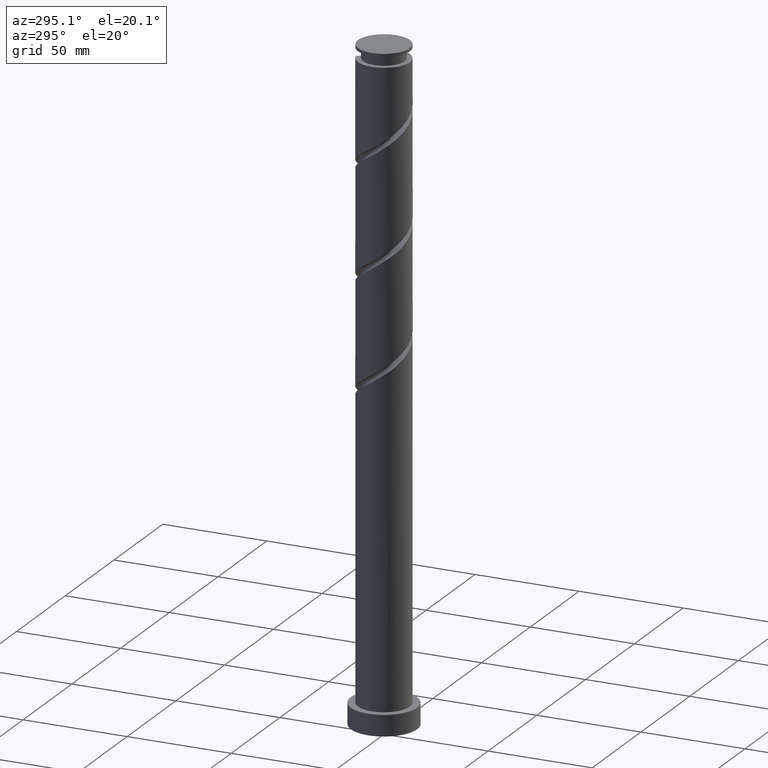
[diagram: clean part render]
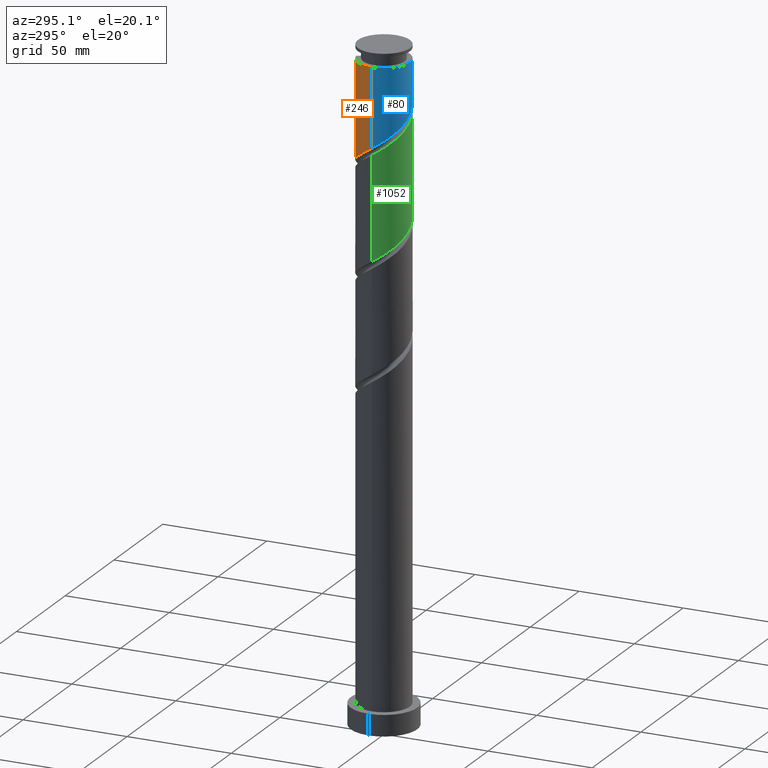
[diagram: same view with three faces highlighted in distinct colors, each labeled with its STEP entity id]
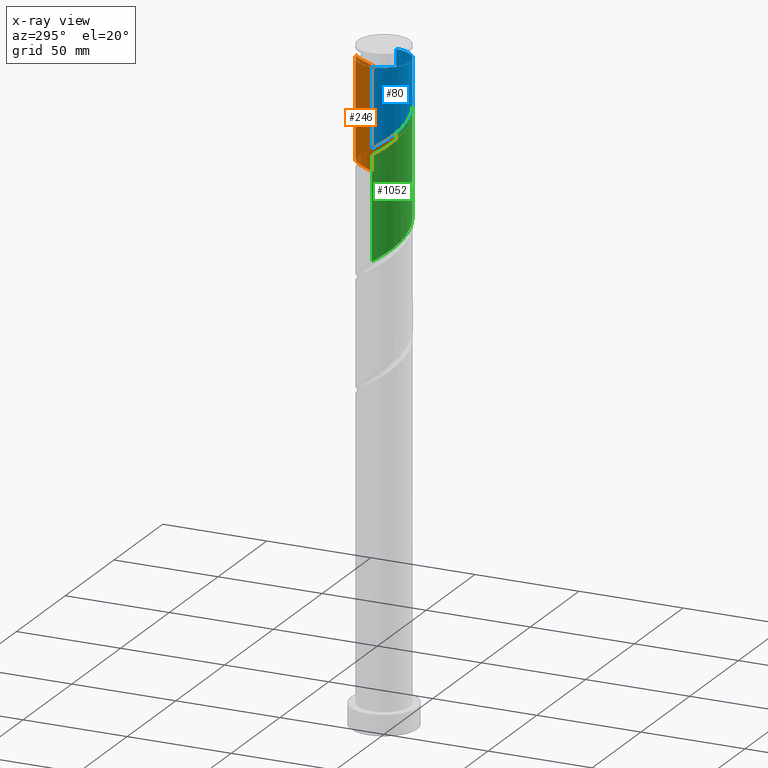
[diagram: x-ray of the same camera — body ghosted, the three highlighted faces saturated]
A machine part, auxiliary view with three faces highlighted in distinct colors.
The next image is the same camera in x-ray (body ghosted, the three faces saturated) — at least one of them is partly hidden behind the body in this view.
Their STEP definitions:

[orange] entity #246 — the highlighted cylindrical surface (edge-blend (fillet) strip) has radius 12.5 mm, axis along (-0, -0, -1).
#24 = CARTESIAN_POINT ( 'NONE',  ( 0.000000000000000000, 0.000000000000000000, 315.0000000000000000 ) ) ;
#49 = CARTESIAN_POINT ( 'NONE',  ( -12.50000000000000000, 1.880647463712331659E-15, 270.8338464934539616 ) ) ;
#70 = CARTESIAN_POINT ( 'NONE',  ( 12.46249111809730081, 1.708782837392382570, 245.7218294155478304 ) ) ;
#78 = CARTESIAN_POINT ( 'NONE',  ( 12.11614080577168018, 3.073944042222378048, 246.6593294155478304 ) ) ;
#87 = CARTESIAN_POINT ( 'NONE',  ( 5.150984002728609568, 11.38935308977792182, 254.1593294155478873 ) ) ;
#98 = CARTESIAN_POINT ( 'NONE',  ( 1.107225078990194511, 12.53027039925619590, 256.9718294155478020 ) ) ;
#107 = CARTESIAN_POINT ( 'NONE',  ( -12.50000000000000000, 1.880647463712331659E-15, 270.8338464934539616 ) ) ;
#114 = CARTESIAN_POINT ( 'NONE',  ( 12.50000000000001421, 1.256297269074016842, 294.5730834166054137 ) ) ;
#152 = VECTOR ( 'NONE', #1671, 1000.000000000000000 ) ;
#223 = CARTESIAN_POINT ( 'NONE',  ( 3.867712106542916750, 11.96972960074379877, 255.0968294155478020 ) ) ;
#246 = ADVANCED_FACE ( 'NONE', ( #286 ), #1811, .T. ) ;
#262 = CARTESIAN_POINT ( 'NONE',  ( 8.026524360199539743, 9.582531330244838941, 301.0343294155479157 ) ) ;
#280 = CARTESIAN_POINT ( 'NONE',  ( 4.439105247052387071, 11.76979049344606665, 303.8468294155477452 ) ) ;
#286 = FACE_OUTER_BOUND ( 'NONE', #686, .T. ) ;
#301 = VERTEX_POINT ( 'NONE', #1209 ) ;
#313 = VERTEX_POINT ( 'NONE', #1655 ) ;
#358 = CARTESIAN_POINT ( 'NONE',  ( 12.49999999999999822, 0.1504112145798753852, 244.6842091816789946 ) ) ;
#369 = AXIS2_PLACEMENT_3D ( 'NONE', #24, #616, #1090 ) ;
#377 = CARTESIAN_POINT ( 'NONE',  ( -9.106216336863127481, 8.678159233401288475, 264.4718294155478020 ) ) ;
#399 = ORIENTED_EDGE ( 'NONE', *, *, #1509, .F. ) ;
#413 = CARTESIAN_POINT ( 'NONE',  ( -1.107225078990243583, 12.53027039925621544, 307.5968294155478588 ) ) ;
#417 = VERTEX_POINT ( 'NONE', #677 ) ;
#422 = CARTESIAN_POINT ( 'NONE',  ( 11.96972960074382009, 3.867712106542916306, 296.3468294155477452 ) ) ;
#443 = CARTESIAN_POINT ( 'NONE',  ( 9.106216336863141692, 8.678159233401297357, 300.0968294155478020 ) ) ;
#464 = ORIENTED_EDGE ( 'NONE', *, *, #1164, .F. ) ;
#465 = AXIS2_PLACEMENT_3D ( 'NONE', #613, #605, #1197 ) ;
#470 =( BOUNDED_CURVE ( )  B_SPLINE_CURVE ( 2, ( #853, #114, #704, #422, #1299, #732, #1189, #443, #262, #1741, #1890, #280, #1020, #1910, #577, #413, #862 ),
 .UNSPECIFIED., .F., .T. ) 
 B_SPLINE_CURVE_WITH_KNOTS ( ( 3, 2, 2, 2, 2, 2, 2, 2, 3 ),
 ( 0.6795303401299220836, 0.6875000000000000000, 0.6964285714285715079, 0.7053571428571429047, 0.7142857142857144126, 0.7232142857142859205, 0.7321428571428574283, 0.7410714285714289362, 0.7500000000000003331 ),
 .UNSPECIFIED. ) 
 CURVE ( )  GEOMETRIC_REPRESENTATION_ITEM ( )  RATIONAL_B_SPLINE_CURVE ( ( 0.9079949616361926434, 0.9039886423360559142, 0.9090909090909224943, 0.9033747362665975889, 0.9090909090909224943, 0.9033747362665975889, 0.9090909090909224943, 0.9033747362665975889, 0.9090909090909224943, 0.9033747362665975889, 0.9090909090909224943, 0.9033747362665975889, 0.9090909090909224943, 0.9033747362665975889, 0.9090909090909224943, 0.9033747362665974778, 0.9090909090909226054 ) ) 
 REPRESENTATION_ITEM ( '' )  );
#524 = CARTESIAN_POINT ( 'NONE',  ( 7.556207566157794098, 9.957596457837590620, 252.2843294155478020 ) ) ;
#537 = CARTESIAN_POINT ( 'NONE',  ( -1.708782837392384790, 12.46249111809730081, 258.8468294155477452 ) ) ;
#550 = CARTESIAN_POINT ( 'NONE',  ( 9.582531330244826506, 8.026524360199521979, 250.4093294155478304 ) ) ;
#567 = CARTESIAN_POINT ( 'NONE',  ( 12.50000000000001954, -3.000080477826793462E-15, 293.7348123376418130 ) ) ;
#577 = CARTESIAN_POINT ( 'NONE',  ( 0.3007788792011008017, 12.49638075867676967, 306.6593294155478020 ) ) ;
#588 = LINE ( 'NONE', #1181, #1615 ) ;
#605 = DIRECTION ( 'NONE',  ( -0.000000000000000000, -0.000000000000000000, -1.000000000000000000 ) ) ;
#613 = CARTESIAN_POINT ( 'NONE',  ( 0.000000000000000000, 0.000000000000000000, 308.5343294155478020 ) ) ;
#616 = DIRECTION ( 'NONE',  ( -0.000000000000000000, -0.000000000000000000, -1.000000000000000000 ) ) ;
#675 = CARTESIAN_POINT ( 'NONE',  ( -6.946832383535917366, 10.48690342708835921, 262.5968294155478020 ) ) ;
#677 = CARTESIAN_POINT ( 'NONE',  ( 12.49999999999999822, -5.373278467749518575E-15, 244.5838464934539047 ) ) ;
#678 = EDGE_CURVE ( 'NONE', #1182, #417, #1207, .T. ) ;
#686 = EDGE_LOOP ( 'NONE', ( #464, #1178, #399, #1597, #1061 ) ) ;
#704 = CARTESIAN_POINT ( 'NONE',  ( 12.25000000000001954, 2.487468592766555187, 295.4093294155479157 ) ) ;
#705 = CARTESIAN_POINT ( 'NONE',  ( -12.25000000000000000, 2.487468592766555631, 269.1593294155478020 ) ) ;
#732 = CARTESIAN_POINT ( 'NONE',  ( 10.80897657881207152, 6.434255898914305938, 298.2218294155478588 ) ) ;
#814 = CARTESIAN_POINT ( 'NONE',  ( 8.678159233401288475, 9.106216336863127481, 251.3468294155478020 ) ) ;
#843 = CARTESIAN_POINT ( 'NONE',  ( -11.96972960074379877, 3.867712106542914530, 268.2218294155478588 ) ) ;
#853 = CARTESIAN_POINT ( 'NONE',  ( 12.50000000000001954, -3.000080477826793462E-15, 293.7348123376418698 ) ) ;
#862 = CARTESIAN_POINT ( 'NONE',  ( -2.487468592766553410, 12.25000000000001954, 308.5343294155478020 ) ) ;
#967 = CARTESIAN_POINT ( 'NONE',  ( 2.487468592766557851, 12.25000000000000000, 256.0343294155478020 ) ) ;
#1020 = CARTESIAN_POINT ( 'NONE',  ( 3.073944042222391371, 12.11614080577169617, 304.7843294155479725 ) ) ;
#1061 = ORIENTED_EDGE ( 'NONE', *, *, #1851, .T. ) ;
#1077 = CARTESIAN_POINT ( 'NONE',  ( 12.50000000000000000, 1.530808498934191521E-15, 315.0000000000000000 ) ) ;
#1090 = DIRECTION ( 'NONE',  ( -1.000000000000000000, 0.000000000000000000, 0.000000000000000000 ) ) ;
#1100 = CARTESIAN_POINT ( 'NONE',  ( -12.49999999999999822, 1.256297269074010181, 269.9955754144902471 ) ) ;
#1122 = CARTESIAN_POINT ( 'NONE',  ( 10.48690342708836098, 6.946832383535914701, 249.4718294155478873 ) ) ;
#1142 = CARTESIAN_POINT ( 'NONE',  ( -9.957596457837594173, 7.556207566157791433, 265.4093294155478588 ) ) ;
#1146 =( BOUNDED_CURVE ( )  B_SPLINE_CURVE ( 2, ( #107, #1100, #705, #843, #1585, #1259, #1142, #377, #1300, #675, #1693, #1871, #1404, #537, #1412, #98, #967, #223, #87, #1291, #524, #814, #550, #1122, #1437, #1446, #78, #70, #1882, #358, #1269 ),
 .UNSPECIFIED., .F., .T. ) 
 B_SPLINE_CURVE_WITH_KNOTS ( ( 3, 2, 2, 2, 2, 2, 2, 2, 2, 2, 2, 2, 2, 2, 2, 3 ),
 ( 0.4295303401299219725, 0.4375000000000000000, 0.4464285714285714524, 0.4553571428571428492, 0.4642857142857143016, 0.4732142857142856984, 0.4821428571428571508, 0.4910714285714285476, 0.5000000000000000000, 0.5089285714285713969, 0.5178571428571429047, 0.5267857142857143016, 0.5357142857142856984, 0.5446428571428570953, 0.5535714285714286031, 0.5545303401299220836 ),
 .UNSPECIFIED. ) 
 CURVE ( )  GEOMETRIC_REPRESENTATION_ITEM ( )  RATIONAL_B_SPLINE_CURVE ( ( 0.9079949616361863152, 0.9039886423360495860, 0.9090909090909161661, 0.9033747362665913716, 0.9090909090909161661, 0.9033747362665913716, 0.9090909090909161661, 0.9033747362665913716, 0.9090909090909161661, 0.9033747362665913716, 0.9090909090909161661, 0.9033747362665913716, 0.9090909090909161661, 0.9033747362665913716, 0.9090909090909161661, 0.9033747362665913716, 0.9090909090909161661, 0.9033747362665913716, 0.9090909090909161661, 0.9033747362665913716, 0.9090909090909161661, 0.9033747362665913716, 0.9090909090909161661, 0.9033747362665913716, 0.9090909090909161661, 0.9033747362665913716, 0.9090909090909161661, 0.9033747362665913716, 0.9090909090909161661, 0.9084770030214579517, 0.9079949616361863152 ) ) 
 REPRESENTATION_ITEM ( '' )  );
#1164 = EDGE_CURVE ( 'NONE', #1182, #313, #470, .T. ) ;
#1178 = ORIENTED_EDGE ( 'NONE', *, *, #678, .T. ) ;
#1181 = CARTESIAN_POINT ( 'NONE',  ( -12.50000000000000000, 0.000000000000000000, 315.0000000000000000 ) ) ;
#1182 = VERTEX_POINT ( 'NONE', #567 ) ;
#1189 = CARTESIAN_POINT ( 'NONE',  ( 9.957596457837611936, 7.556207566157802979, 299.1593294155478588 ) ) ;
#1197 = DIRECTION ( 'NONE',  ( -1.000000000000000000, 0.000000000000000000, 0.000000000000000000 ) ) ;
#1207 = LINE ( 'NONE', #1077, #152 ) ;
#1209 = CARTESIAN_POINT ( 'NONE',  ( -12.49999999999997691, 0.000000000000000000, 308.5343294155478020 ) ) ;
#1259 = CARTESIAN_POINT ( 'NONE',  ( -10.80897657881205198, 6.434255898914301497, 266.3468294155478020 ) ) ;
#1269 = CARTESIAN_POINT ( 'NONE',  ( 12.49999999999999822, -5.373278467749518575E-15, 244.5838464934539047 ) ) ;
#1291 = CARTESIAN_POINT ( 'NONE',  ( 6.434255898914301497, 10.80897657881204843, 253.2218294155478304 ) ) ;
#1299 = CARTESIAN_POINT ( 'NONE',  ( 11.38935308977794492, 5.150984002728610456, 297.2843294155479157 ) ) ;
#1300 = CARTESIAN_POINT ( 'NONE',  ( -8.026524360199523755, 9.582531330244824730, 263.5343294155478020 ) ) ;
#1309 = VERTEX_POINT ( 'NONE', #49 ) ;
#1310 = CIRCLE ( 'NONE', #465, 12.49999999999997691 ) ;
#1404 = CARTESIAN_POINT ( 'NONE',  ( -3.073944042222380268, 12.11614080577167663, 259.7843294155478588 ) ) ;
#1412 = CARTESIAN_POINT ( 'NONE',  ( -0.3007788792010951950, 12.49638075867675369, 257.9093294155479157 ) ) ;
#1437 = CARTESIAN_POINT ( 'NONE',  ( 11.12834696026720849, 5.692968815294142892, 248.5343294155478304 ) ) ;
#1446 = CARTESIAN_POINT ( 'NONE',  ( 11.76979049344605066, 4.439105247052371972, 247.5968294155478020 ) ) ;
#1481 = DIRECTION ( 'NONE',  ( -0.000000000000000000, -0.000000000000000000, -1.000000000000000000 ) ) ;
#1509 = EDGE_CURVE ( 'NONE', #1309, #417, #1146, .T. ) ;
#1585 = CARTESIAN_POINT ( 'NONE',  ( -11.38935308977792360, 5.150984002728607791, 267.2843294155478588 ) ) ;
#1597 = ORIENTED_EDGE ( 'NONE', *, *, #1660, .F. ) ;
#1615 = VECTOR ( 'NONE', #1481, 1000.000000000000000 ) ;
#1655 = CARTESIAN_POINT ( 'NONE',  ( -2.487468592766553410, 12.25000000000001954, 308.5343294155478020 ) ) ;
#1660 = EDGE_CURVE ( 'NONE', #301, #1309, #588, .T. ) ;
#1671 = DIRECTION ( 'NONE',  ( -0.000000000000000000, -0.000000000000000000, -1.000000000000000000 ) ) ;
#1693 = CARTESIAN_POINT ( 'NONE',  ( -5.692968815294146445, 11.12834696026720849, 261.6593294155478588 ) ) ;
#1741 = CARTESIAN_POINT ( 'NONE',  ( 6.946832383535931577, 10.48690342708837697, 301.9718294155478020 ) ) ;
#1811 = CYLINDRICAL_SURFACE ( 'NONE', #369, 12.50000000000000000 ) ;
#1851 = EDGE_CURVE ( 'NONE', #301, #313, #1310, .T. ) ;
#1871 = CARTESIAN_POINT ( 'NONE',  ( -4.439105247052374636, 11.76979049344605066, 260.7218294155478588 ) ) ;
#1882 = CARTESIAN_POINT ( 'NONE',  ( 12.49638075867675369, 0.3007788792010931966, 244.7843294155478304 ) ) ;
#1890 = CARTESIAN_POINT ( 'NONE',  ( 5.692968815294160656, 11.12834696026722625, 302.9093294155478020 ) ) ;
#1910 = CARTESIAN_POINT ( 'NONE',  ( 1.708782837392392784, 12.46249111809732035, 305.7218294155478588 ) ) ;

[blue] entity #80 — the highlighted cylindrical surface (edge-blend (fillet) strip) has radius 12.5 mm, axis along (-0, -0, -1).
#10 = CARTESIAN_POINT ( 'NONE',  ( -5.150984002728608679, -11.38935308977792360, 280.4093294155479157 ) ) ;
#19 = CARTESIAN_POINT ( 'NONE',  ( 12.25000000000000000, -2.487468592766556963, 295.4093294155478588 ) ) ;
#20 = DIRECTION ( 'NONE',  ( -0.000000000000000000, -0.000000000000000000, -1.000000000000000000 ) ) ;
#39 = CARTESIAN_POINT ( 'NONE',  ( 4.439105247052373748, -11.76979049344605066, 286.9718294155478020 ) ) ;
#49 = CARTESIAN_POINT ( 'NONE',  ( -12.50000000000000000, 1.880647463712331659E-15, 270.8338464934539616 ) ) ;
#80 = ADVANCED_FACE ( 'NONE', ( #477 ), #950, .T. ) ;
#110 = ORIENTED_EDGE ( 'NONE', *, *, #1660, .T. ) ;
#160 = CARTESIAN_POINT ( 'NONE',  ( -3.867712106542915862, -11.96972960074379877, 281.3468294155478588 ) ) ;
#170 = CARTESIAN_POINT ( 'NONE',  ( 8.026524360199521979, -9.582531330244826506, 289.7843294155479157 ) ) ;
#174 = CARTESIAN_POINT ( 'NONE',  ( 0.000000000000000000, 0.000000000000000000, 315.0000000000000000 ) ) ;
#178 = CARTESIAN_POINT ( 'NONE',  ( 9.106216336863127481, -8.678159233401288475, 290.7218294155477452 ) ) ;
#217 = VECTOR ( 'NONE', #20, 1000.000000000000000 ) ;
#301 = VERTEX_POINT ( 'NONE', #1209 ) ;
#307 = CARTESIAN_POINT ( 'NONE',  ( -8.678159233401288475, -9.106216336863127481, 277.5968294155478588 ) ) ;
#317 = CARTESIAN_POINT ( 'NONE',  ( 6.946832383535914701, -10.48690342708836098, 288.8468294155478020 ) ) ;
#326 = CARTESIAN_POINT ( 'NONE',  ( -10.48690342708835921, -6.946832383535914701, 275.7218294155478588 ) ) ;
#332 = DIRECTION ( 'NONE',  ( -1.000000000000000000, 0.000000000000000000, 0.000000000000000000 ) ) ;
#336 = CARTESIAN_POINT ( 'NONE',  ( 11.96972960074379877, -3.867712106542915862, 294.4718294155478588 ) ) ;
#406 = VERTEX_POINT ( 'NONE', #1414 ) ;
#452 = CARTESIAN_POINT ( 'NONE',  ( 12.50000000000000000, -3.507556777558713668E-15, 297.0838464934538479 ) ) ;
#477 = FACE_OUTER_BOUND ( 'NONE', #547, .T. ) ;
#485 = DIRECTION ( 'NONE',  ( -0.000000000000000000, -0.000000000000000000, -1.000000000000000000 ) ) ;
#492 = CARTESIAN_POINT ( 'NONE',  ( 3.073944042222379380, -12.11614080577167663, 286.0343294155478020 ) ) ;
#547 = EDGE_LOOP ( 'NONE', ( #905, #1115, #110, #676 ) ) ;
#548 = EDGE_CURVE ( 'NONE', #1334, #301, #1435, .T. ) ;
#588 = LINE ( 'NONE', #1181, #1615 ) ;
#612 = CARTESIAN_POINT ( 'NONE',  ( -11.76979049344605066, -4.439105247052373748, 273.8468294155478588 ) ) ;
#676 = ORIENTED_EDGE ( 'NONE', *, *, #1347, .F. ) ;
#754 = CARTESIAN_POINT ( 'NONE',  ( 9.957596457837590620, -7.556207566157794098, 291.6593294155478588 ) ) ;
#764 = CARTESIAN_POINT ( 'NONE',  ( -9.582531330244821177, -8.026524360199521979, 276.6593294155479157 ) ) ;
#773 = CARTESIAN_POINT ( 'NONE',  ( 1.708782837392383680, -12.46249111809730081, 285.0968294155478020 ) ) ;
#896 = DIRECTION ( 'NONE',  ( -1.000000000000000000, 0.000000000000000000, 0.000000000000000000 ) ) ;
#905 = ORIENTED_EDGE ( 'NONE', *, *, #1828, .F. ) ;
#919 = CARTESIAN_POINT ( 'NONE',  ( 5.692968815294142892, -11.12834696026720849, 287.9093294155478588 ) ) ;
#928 = LINE ( 'NONE', #1375, #217 ) ;
#950 = CYLINDRICAL_SURFACE ( 'NONE', #1705, 12.50000000000000000 ) ;
#1048 = CARTESIAN_POINT ( 'NONE',  ( -7.556207566157791433, -9.957596457837590620, 278.5343294155478020 ) ) ;
#1058 = CARTESIAN_POINT ( 'NONE',  ( -12.46249111809730081, -1.708782837392383680, 271.9718294155478588 ) ) ;
#1115 = ORIENTED_EDGE ( 'NONE', *, *, #548, .T. ) ;
#1181 = CARTESIAN_POINT ( 'NONE',  ( -12.50000000000000000, 0.000000000000000000, 315.0000000000000000 ) ) ;
#1205 = CARTESIAN_POINT ( 'NONE',  ( -1.107225078990195843, -12.53027039925619590, 283.2218294155478020 ) ) ;
#1209 = CARTESIAN_POINT ( 'NONE',  ( -12.49999999999997691, 0.000000000000000000, 308.5343294155478020 ) ) ;
#1234 = CARTESIAN_POINT ( 'NONE',  ( 11.38935308977792360, -5.150984002728609568, 293.5343294155477452 ) ) ;
#1309 = VERTEX_POINT ( 'NONE', #49 ) ;
#1328 = CARTESIAN_POINT ( 'NONE',  ( 0.000000000000000000, 0.000000000000000000, 308.5343294155478020 ) ) ;
#1334 = VERTEX_POINT ( 'NONE', #1374 ) ;
#1347 = EDGE_CURVE ( 'NONE', #406, #1309, #1674, .T. ) ;
#1348 = CARTESIAN_POINT ( 'NONE',  ( -2.487468592766556519, -12.25000000000000000, 282.2843294155477452 ) ) ;
#1356 = CARTESIAN_POINT ( 'NONE',  ( -11.12834696026720849, -5.692968815294145557, 274.7843294155478020 ) ) ;
#1364 = CARTESIAN_POINT ( 'NONE',  ( -12.50000000000000000, 1.880647463712331659E-15, 270.8338464934539616 ) ) ;
#1374 = CARTESIAN_POINT ( 'NONE',  ( 12.49999999999997691, 1.530808498934190141E-15, 308.5343294155478020 ) ) ;
#1375 = CARTESIAN_POINT ( 'NONE',  ( 12.50000000000000000, 1.530808498934191521E-15, 315.0000000000000000 ) ) ;
#1414 = CARTESIAN_POINT ( 'NONE',  ( 12.50000000000000000, -3.507556777558713668E-15, 297.0838464934538479 ) ) ;
#1435 = CIRCLE ( 'NONE', #1899, 12.49999999999997691 ) ;
#1481 = DIRECTION ( 'NONE',  ( -0.000000000000000000, -0.000000000000000000, -1.000000000000000000 ) ) ;
#1508 = CARTESIAN_POINT ( 'NONE',  ( -12.49638075867675369, -0.3007788792010949175, 271.0343294155479157 ) ) ;
#1516 = CARTESIAN_POINT ( 'NONE',  ( 12.49999999999999467, -1.256297269074020395, 296.2455754144902471 ) ) ;
#1615 = VECTOR ( 'NONE', #1481, 1000.000000000000000 ) ;
#1631 = CARTESIAN_POINT ( 'NONE',  ( 0.3007788792010940293, -12.49638075867675369, 284.1593294155479157 ) ) ;
#1649 = CARTESIAN_POINT ( 'NONE',  ( -12.50000000000000178, -0.1504112145798867095, 270.9342091816790230 ) ) ;
#1660 = EDGE_CURVE ( 'NONE', #301, #1309, #588, .T. ) ;
#1674 =( BOUNDED_CURVE ( )  B_SPLINE_CURVE ( 2, ( #452, #1516, #19, #336, #1234, #1826, #754, #178, #170, #317, #919, #39, #492, #773, #1631, #1205, #1348, #160, #10, #1807, #1048, #307, #764, #326, #1356, #612, #1795, #1058, #1508, #1649, #1364 ),
 .UNSPECIFIED., .F., .T. ) 
 B_SPLINE_CURVE_WITH_KNOTS ( ( 3, 2, 2, 2, 2, 2, 2, 2, 2, 2, 2, 2, 2, 2, 2, 3 ),
 ( 0.3045303401299220281, 0.3125000000000000000, 0.3214285714285714524, 0.3303571428571428492, 0.3392857142857143016, 0.3482142857142856984, 0.3571428571428571508, 0.3660714285714285476, 0.3750000000000000000, 0.3839285714285714524, 0.3928571428571428492, 0.4017857142857143016, 0.4107142857142856984, 0.4196428571428571508, 0.4285714285714285476, 0.4295303401299219725 ),
 .UNSPECIFIED. ) 
 CURVE ( )  GEOMETRIC_REPRESENTATION_ITEM ( )  RATIONAL_B_SPLINE_CURVE ( ( 0.9079949616361863152, 0.9039886423360495860, 0.9090909090909161661, 0.9033747362665913716, 0.9090909090909161661, 0.9033747362665913716, 0.9090909090909161661, 0.9033747362665913716, 0.9090909090909161661, 0.9033747362665913716, 0.9090909090909161661, 0.9033747362665913716, 0.9090909090909161661, 0.9033747362665913716, 0.9090909090909161661, 0.9033747362665913716, 0.9090909090909161661, 0.9033747362665913716, 0.9090909090909161661, 0.9033747362665913716, 0.9090909090909161661, 0.9033747362665913716, 0.9090909090909161661, 0.9033747362665913716, 0.9090909090909161661, 0.9033747362665913716, 0.9090909090909161661, 0.9033747362665913716, 0.9090909090909161661, 0.9084770030214579517, 0.9079949616361863152 ) ) 
 REPRESENTATION_ITEM ( '' )  );
#1705 = AXIS2_PLACEMENT_3D ( 'NONE', #174, #485, #332 ) ;
#1795 = CARTESIAN_POINT ( 'NONE',  ( -12.11614080577167663, -3.073944042222380268, 272.9093294155477452 ) ) ;
#1807 = CARTESIAN_POINT ( 'NONE',  ( -6.434255898914301497, -10.80897657881204843, 279.4718294155477452 ) ) ;
#1826 = CARTESIAN_POINT ( 'NONE',  ( 10.80897657881204843, -6.434255898914301497, 292.5968294155478020 ) ) ;
#1828 = EDGE_CURVE ( 'NONE', #1334, #406, #928, .T. ) ;
#1899 = AXIS2_PLACEMENT_3D ( 'NONE', #1328, #1921, #896 ) ;
#1921 = DIRECTION ( 'NONE',  ( -0.000000000000000000, -0.000000000000000000, -1.000000000000000000 ) ) ;

[green] entity #1052 — the highlighted cylindrical surface (edge-blend (fillet) strip) has radius 12.5 mm, axis along (-0, -0, -1).
#46 = EDGE_CURVE ( 'NONE', #417, #449, #196, .T. ) ;
#79 = CARTESIAN_POINT ( 'NONE',  ( -5.692968815294158880, -11.12834696026722625, 276.6593294155479157 ) ) ;
#99 = CARTESIAN_POINT ( 'NONE',  ( -3.073944042222388706, -12.11614080577169439, 278.5343294155479725 ) ) ;
#152 = VECTOR ( 'NONE', #1671, 1000.000000000000000 ) ;
#196 =( BOUNDED_CURVE ( )  B_SPLINE_CURVE ( 2, ( #583, #543, #1322, #1747, #409, #1295, #1007, #554, #1015, #572, #1000, #1606, #1572, #1174, #878, #1469, #839, #258, #1395, #1832, #1238, #797, #322, #1665, #204, #923, #1529, #1229, #1250, #1512, #1538 ),
 .UNSPECIFIED., .F., .T. ) 
 B_SPLINE_CURVE_WITH_KNOTS ( ( 3, 2, 2, 2, 2, 2, 2, 2, 2, 2, 2, 2, 2, 2, 2, 3 ),
 ( 0.5545303401299220836, 0.5625000000000000000, 0.5714285714285713969, 0.5803571428571429047, 0.5892857142857143016, 0.5982142857142856984, 0.6071428571428570953, 0.6160714285714286031, 0.6250000000000000000, 0.6339285714285713969, 0.6428571428571429047, 0.6517857142857143016, 0.6607142857142856984, 0.6696428571428570953, 0.6785714285714286031, 0.6795303401299220836 ),
 .UNSPECIFIED. ) 
 CURVE ( )  GEOMETRIC_REPRESENTATION_ITEM ( )  RATIONAL_B_SPLINE_CURVE ( ( 0.9079949616361863152, 0.9039886423360496970, 0.9090909090909161661, 0.9033747362665913716, 0.9090909090909161661, 0.9033747362665913716, 0.9090909090909161661, 0.9033747362665913716, 0.9090909090909161661, 0.9033747362665913716, 0.9090909090909161661, 0.9033747362665913716, 0.9090909090909161661, 0.9033747362665913716, 0.9090909090909161661, 0.9033747362665913716, 0.9090909090909161661, 0.9033747362665913716, 0.9090909090909161661, 0.9033747362665913716, 0.9090909090909161661, 0.9033747362665913716, 0.9090909090909161661, 0.9033747362665913716, 0.9090909090909161661, 0.9033747362665913716, 0.9090909090909161661, 0.9033747362665913716, 0.9090909090909161661, 0.9084770030214579517, 0.9079949616361863152 ) ) 
 REPRESENTATION_ITEM ( '' )  );
#204 = CARTESIAN_POINT ( 'NONE',  ( -11.12834696026720849, -5.692968815294145557, 222.2843294155478304 ) ) ;
#214 = CARTESIAN_POINT ( 'NONE',  ( -12.50000000000002132, -1.256297269074001299, 268.3230834166053569 ) ) ;
#222 = CARTESIAN_POINT ( 'NONE',  ( 0.000000000000000000, 0.000000000000000000, 315.0000000000000000 ) ) ;
#224 = CARTESIAN_POINT ( 'NONE',  ( -1.708782837392391452, -12.46249111809732213, 279.4718294155477452 ) ) ;
#234 = CARTESIAN_POINT ( 'NONE',  ( -0.3007788792010990253, -12.49638075867677145, 280.4093294155479157 ) ) ;
#245 = CARTESIAN_POINT ( 'NONE',  ( 11.76979049344606665, -4.439105247052385295, 290.7218294155478020 ) ) ;
#256 = CARTESIAN_POINT ( 'NONE',  ( -12.25000000000001954, -2.487468592766556519, 269.1593294155479157 ) ) ;
#258 = CARTESIAN_POINT ( 'NONE',  ( -3.867712106542915862, -11.96972960074379877, 228.8468294155478304 ) ) ;
#322 = CARTESIAN_POINT ( 'NONE',  ( -9.582531330244821177, -8.026524360199521979, 224.1593294155478304 ) ) ;
#386 = EDGE_CURVE ( 'NONE', #1894, #1182, #538, .T. ) ;
#409 = CARTESIAN_POINT ( 'NONE',  ( 11.38935308977792360, -5.150984002728609568, 241.0343294155478020 ) ) ;
#417 = VERTEX_POINT ( 'NONE', #677 ) ;
#428 = EDGE_LOOP ( 'NONE', ( #1044, #1756, #1567, #849 ) ) ;
#449 = VERTEX_POINT ( 'NONE', #1339 ) ;
#453 = CARTESIAN_POINT ( 'NONE',  ( -12.50000000000000000, 0.000000000000000000, 315.0000000000000000 ) ) ;
#538 =( BOUNDED_CURVE ( )  B_SPLINE_CURVE ( 2, ( #939, #214, #256, #539, #1281, #551, #1133, #1270, #979, #1301, #79, #815, #99, #224, #234, #1704, #1586, #1405, #1884, #1861, #844, #1850, #1438, #1123, #1872, #245, #855, #696, #1548, #1734, #1576 ),
 .UNSPECIFIED., .F., .T. ) 
 B_SPLINE_CURVE_WITH_KNOTS ( ( 3, 2, 2, 2, 2, 2, 2, 2, 2, 2, 2, 2, 2, 2, 2, 3 ),
 ( 0.5545303401299219725, 0.5625000000000000000, 0.5714285714285713969, 0.5803571428571427937, 0.5892857142857143016, 0.5982142857142856984, 0.6071428571428572063, 0.6160714285714286031, 0.6250000000000000000, 0.6339285714285713969, 0.6428571428571427937, 0.6517857142857143016, 0.6607142857142856984, 0.6696428571428572063, 0.6785714285714286031, 0.6795303401299220836 ),
 .UNSPECIFIED. ) 
 CURVE ( )  GEOMETRIC_REPRESENTATION_ITEM ( )  RATIONAL_B_SPLINE_CURVE ( ( 0.9079949616361926434, 0.9039886423360558032, 0.9090909090909224943, 0.9033747362665975889, 0.9090909090909224943, 0.9033747362665975889, 0.9090909090909224943, 0.9033747362665975889, 0.9090909090909224943, 0.9033747362665975889, 0.9090909090909224943, 0.9033747362665975889, 0.9090909090909224943, 0.9033747362665975889, 0.9090909090909224943, 0.9033747362665975889, 0.9090909090909224943, 0.9033747362665975889, 0.9090909090909224943, 0.9033747362665975889, 0.9090909090909224943, 0.9033747362665975889, 0.9090909090909224943, 0.9033747362665975889, 0.9090909090909224943, 0.9033747362665975889, 0.9090909090909224943, 0.9033747362665975889, 0.9090909090909224943, 0.9084770030214643910, 0.9079949616361926434 ) ) 
 REPRESENTATION_ITEM ( '' )  );
#539 = CARTESIAN_POINT ( 'NONE',  ( -11.96972960074382009, -3.867712106542918082, 270.0968294155478588 ) ) ;
#543 = CARTESIAN_POINT ( 'NONE',  ( 12.49999999999999467, -1.256297269074020839, 243.7455754144902187 ) ) ;
#551 = CARTESIAN_POINT ( 'NONE',  ( -10.80897657881207152, -6.434255898914305938, 271.9718294155478588 ) ) ;
#554 = CARTESIAN_POINT ( 'NONE',  ( 9.106216336863127481, -8.678159233401288475, 238.2218294155478588 ) ) ;
#567 = CARTESIAN_POINT ( 'NONE',  ( 12.50000000000001954, -3.000080477826793462E-15, 293.7348123376418130 ) ) ;
#572 = CARTESIAN_POINT ( 'NONE',  ( 6.946832383535914701, -10.48690342708836098, 236.3468294155477736 ) ) ;
#583 = CARTESIAN_POINT ( 'NONE',  ( 12.49999999999999822, -5.373278467749518575E-15, 244.5838464934539047 ) ) ;
#677 = CARTESIAN_POINT ( 'NONE',  ( 12.49999999999999822, -5.373278467749518575E-15, 244.5838464934539047 ) ) ;
#678 = EDGE_CURVE ( 'NONE', #1182, #417, #1207, .T. ) ;
#694 = CYLINDRICAL_SURFACE ( 'NONE', #1903, 12.50000000000000000 ) ;
#696 = CARTESIAN_POINT ( 'NONE',  ( 12.46249111809732035, -1.708782837392392340, 292.5968294155478588 ) ) ;
#797 = CARTESIAN_POINT ( 'NONE',  ( -8.678159233401288475, -9.106216336863127481, 225.0968294155478304 ) ) ;
#800 = EDGE_CURVE ( 'NONE', #1894, #449, #1790, .T. ) ;
#815 = CARTESIAN_POINT ( 'NONE',  ( -4.439105247052385295, -11.76979049344606665, 277.5968294155478020 ) ) ;
#839 = CARTESIAN_POINT ( 'NONE',  ( -2.487468592766556519, -12.25000000000000000, 229.7843294155478020 ) ) ;
#844 = CARTESIAN_POINT ( 'NONE',  ( 7.556207566157803868, -9.957596457837610160, 286.0343294155478588 ) ) ;
#849 = ORIENTED_EDGE ( 'NONE', *, *, #46, .F. ) ;
#855 = CARTESIAN_POINT ( 'NONE',  ( 12.11614080577169439, -3.073944042222390038, 291.6593294155479157 ) ) ;
#878 = CARTESIAN_POINT ( 'NONE',  ( 0.3007788792010940293, -12.49638075867675369, 231.6593294155478020 ) ) ;
#923 = CARTESIAN_POINT ( 'NONE',  ( -11.76979049344605066, -4.439105247052373748, 221.3468294155477736 ) ) ;
#939 = CARTESIAN_POINT ( 'NONE',  ( -12.50000000000001954, 1.358245390458896535E-15, 267.4848123376417561 ) ) ;
#979 = CARTESIAN_POINT ( 'NONE',  ( -8.026524360199537966, -9.582531330244838941, 274.7843294155478588 ) ) ;
#1000 = CARTESIAN_POINT ( 'NONE',  ( 5.692968815294142892, -11.12834696026720849, 235.4093294155478873 ) ) ;
#1007 = CARTESIAN_POINT ( 'NONE',  ( 9.957596457837590620, -7.556207566157794098, 239.1593294155478588 ) ) ;
#1015 = CARTESIAN_POINT ( 'NONE',  ( 8.026524360199521979, -9.582531330244826506, 237.2843294155478588 ) ) ;
#1044 = ORIENTED_EDGE ( 'NONE', *, *, #678, .F. ) ;
#1050 = DIRECTION ( 'NONE',  ( -0.000000000000000000, -0.000000000000000000, -1.000000000000000000 ) ) ;
#1052 = ADVANCED_FACE ( 'NONE', ( #1393 ), #694, .T. ) ;
#1077 = CARTESIAN_POINT ( 'NONE',  ( 12.50000000000000000, 1.530808498934191521E-15, 315.0000000000000000 ) ) ;
#1123 = CARTESIAN_POINT ( 'NONE',  ( 10.48690342708837697, -6.946832383535931577, 288.8468294155478588 ) ) ;
#1133 = CARTESIAN_POINT ( 'NONE',  ( -9.957596457837610160, -7.556207566157804756, 272.9093294155478588 ) ) ;
#1141 = DIRECTION ( 'NONE',  ( -1.000000000000000000, 0.000000000000000000, 0.000000000000000000 ) ) ;
#1174 = CARTESIAN_POINT ( 'NONE',  ( 1.708782837392383680, -12.46249111809730081, 232.5968294155478588 ) ) ;
#1182 = VERTEX_POINT ( 'NONE', #567 ) ;
#1207 = LINE ( 'NONE', #1077, #152 ) ;
#1229 = CARTESIAN_POINT ( 'NONE',  ( -12.46249111809730081, -1.708782837392383680, 219.4718294155478304 ) ) ;
#1238 = CARTESIAN_POINT ( 'NONE',  ( -7.556207566157791433, -9.957596457837590620, 226.0343294155478588 ) ) ;
#1250 = CARTESIAN_POINT ( 'NONE',  ( -12.49638075867675369, -0.3007788792010949175, 218.5343294155478588 ) ) ;
#1270 = CARTESIAN_POINT ( 'NONE',  ( -9.106216336863141692, -8.678159233401297357, 273.8468294155478588 ) ) ;
#1281 = CARTESIAN_POINT ( 'NONE',  ( -11.38935308977794492, -5.150984002728612232, 271.0343294155479157 ) ) ;
#1295 = CARTESIAN_POINT ( 'NONE',  ( 10.80897657881204843, -6.434255898914301497, 240.0968294155478304 ) ) ;
#1301 = CARTESIAN_POINT ( 'NONE',  ( -6.946832383535930688, -10.48690342708837697, 275.7218294155478588 ) ) ;
#1322 = CARTESIAN_POINT ( 'NONE',  ( 12.25000000000000000, -2.487468592766556963, 242.9093294155478304 ) ) ;
#1339 = CARTESIAN_POINT ( 'NONE',  ( -12.49999999999999822, 3.761294927424663318E-15, 218.3338464934538763 ) ) ;
#1393 = FACE_OUTER_BOUND ( 'NONE', #428, .T. ) ;
#1395 = CARTESIAN_POINT ( 'NONE',  ( -5.150984002728608679, -11.38935308977792360, 227.9093294155478020 ) ) ;
#1405 = CARTESIAN_POINT ( 'NONE',  ( 3.867712106542917194, -11.96972960074382009, 283.2218294155478020 ) ) ;
#1438 = CARTESIAN_POINT ( 'NONE',  ( 9.582531330244838941, -8.026524360199539743, 287.9093294155479157 ) ) ;
#1469 = CARTESIAN_POINT ( 'NONE',  ( -1.107225078990195843, -12.53027039925619590, 230.7218294155477736 ) ) ;
#1512 = CARTESIAN_POINT ( 'NONE',  ( -12.49999999999999822, -0.1504112145798770783, 218.4342091816789377 ) ) ;
#1517 = CARTESIAN_POINT ( 'NONE',  ( -12.50000000000001954, 1.358245390458896535E-15, 267.4848123376417561 ) ) ;
#1529 = CARTESIAN_POINT ( 'NONE',  ( -12.11614080577167663, -3.073944042222380268, 220.4093294155478304 ) ) ;
#1538 = CARTESIAN_POINT ( 'NONE',  ( -12.49999999999999822, 3.761294927424663318E-15, 218.3338464934538763 ) ) ;
#1548 = CARTESIAN_POINT ( 'NONE',  ( 12.49638075867677145, -0.3007788792011003021, 293.5343294155479725 ) ) ;
#1551 = VECTOR ( 'NONE', #1050, 1000.000000000000000 ) ;
#1567 = ORIENTED_EDGE ( 'NONE', *, *, #800, .T. ) ;
#1572 = CARTESIAN_POINT ( 'NONE',  ( 3.073944042222379380, -12.11614080577167663, 233.5343294155478020 ) ) ;
#1576 = CARTESIAN_POINT ( 'NONE',  ( 12.50000000000001954, -3.000080477826793462E-15, 293.7348123376418698 ) ) ;
#1586 = CARTESIAN_POINT ( 'NONE',  ( 2.487468592766555631, -12.25000000000001954, 282.2843294155478020 ) ) ;
#1606 = CARTESIAN_POINT ( 'NONE',  ( 4.439105247052373748, -11.76979049344605066, 234.4718294155478304 ) ) ;
#1665 = CARTESIAN_POINT ( 'NONE',  ( -10.48690342708835921, -6.946832383535914701, 223.2218294155478304 ) ) ;
#1671 = DIRECTION ( 'NONE',  ( -0.000000000000000000, -0.000000000000000000, -1.000000000000000000 ) ) ;
#1704 = CARTESIAN_POINT ( 'NONE',  ( 1.107225078990192291, -12.53027039925621366, 281.3468294155479157 ) ) ;
#1723 = DIRECTION ( 'NONE',  ( -0.000000000000000000, -0.000000000000000000, -1.000000000000000000 ) ) ;
#1734 = CARTESIAN_POINT ( 'NONE',  ( 12.50000000000001599, -0.1504112145798821576, 293.6344496494167515 ) ) ;
#1747 = CARTESIAN_POINT ( 'NONE',  ( 11.96972960074379877, -3.867712106542915862, 241.9718294155478588 ) ) ;
#1756 = ORIENTED_EDGE ( 'NONE', *, *, #386, .F. ) ;
#1790 = LINE ( 'NONE', #453, #1551 ) ;
#1832 = CARTESIAN_POINT ( 'NONE',  ( -6.434255898914301497, -10.80897657881204843, 226.9718294155478588 ) ) ;
#1850 = CARTESIAN_POINT ( 'NONE',  ( 8.678159233401297357, -9.106216336863141692, 286.9718294155478588 ) ) ;
#1861 = CARTESIAN_POINT ( 'NONE',  ( 6.434255898914305938, -10.80897657881207152, 285.0968294155478020 ) ) ;
#1872 = CARTESIAN_POINT ( 'NONE',  ( 11.12834696026722625, -5.692968815294160656, 289.7843294155478020 ) ) ;
#1884 = CARTESIAN_POINT ( 'NONE',  ( 5.150984002728612232, -11.38935308977794492, 284.1593294155479725 ) ) ;
#1894 = VERTEX_POINT ( 'NONE', #1517 ) ;
#1903 = AXIS2_PLACEMENT_3D ( 'NONE', #222, #1723, #1141 ) ;